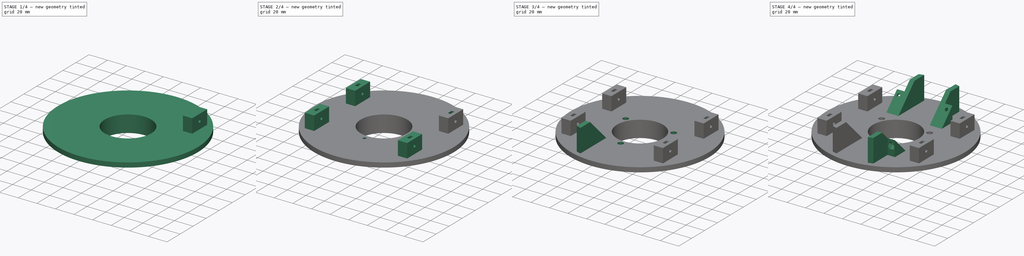
[diagram: build sequence overview — one tinted view per stage of 4, left to right]
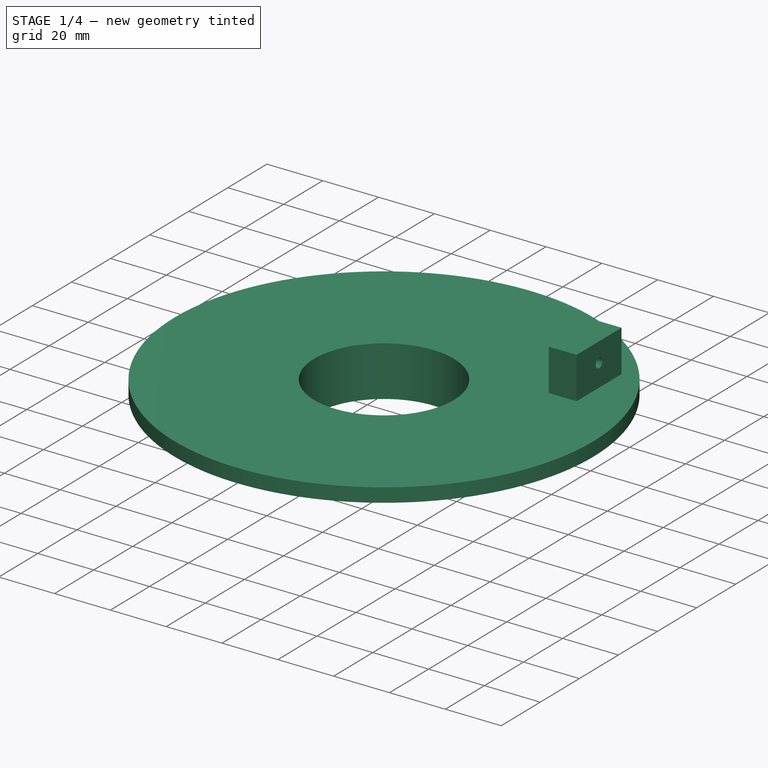
[diagram: stage 1 of 4 — iso view after this stage's code; geometry added in this stage tinted green]
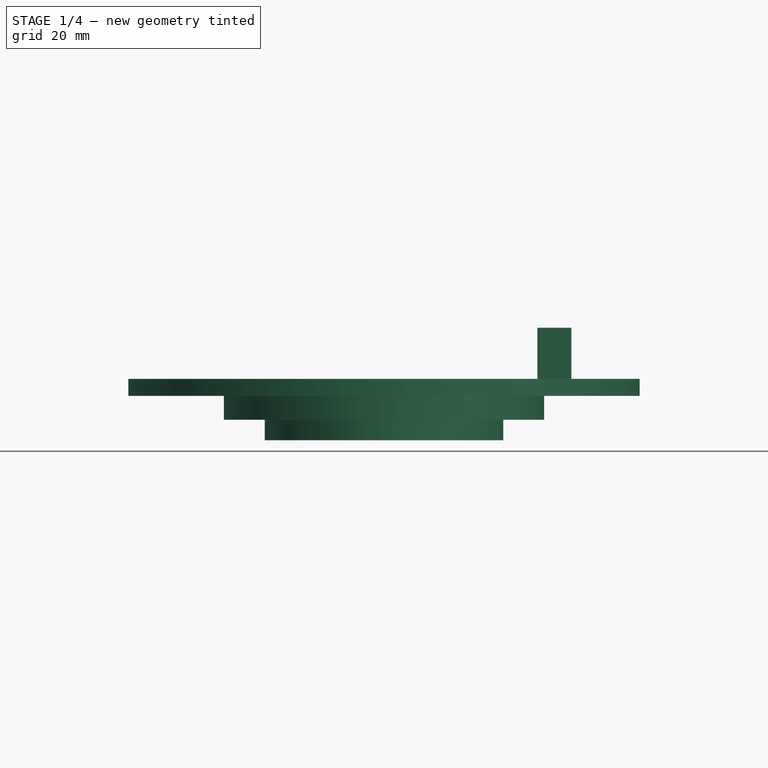
[diagram: stage 1 of 4 — front view after this stage's code; geometry added in this stage tinted green]
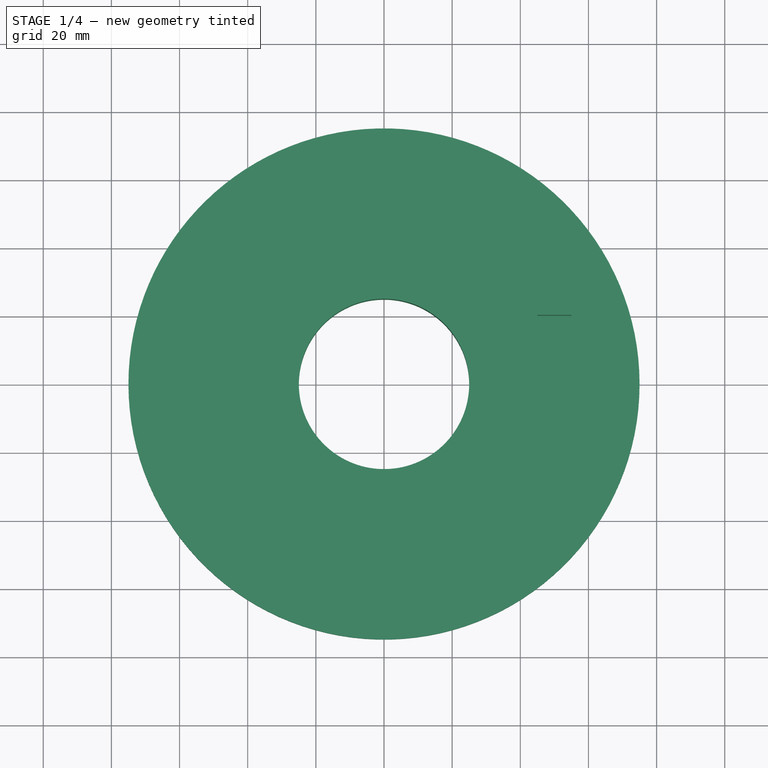
[diagram: stage 1 of 4 — top view after this stage's code; geometry added in this stage tinted green]
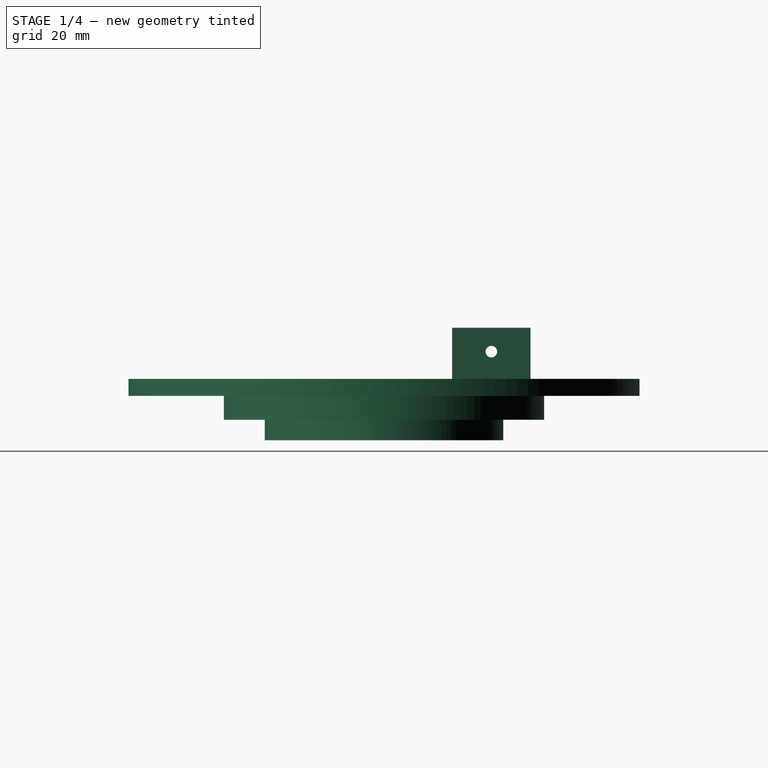
[diagram: stage 1 of 4 — right view after this stage's code; geometry added in this stage tinted green]
FCSTD DOCUMENT  (FreeCAD 0.19R24276 (Git))
Label: Art1Top
License: All rights reserved
LicenseURL: http://en.wikipedia.org/wiki/All_rights_reserved
objects: PartDesign::Line×11, Sketcher::SketchObject×10, PartDesign::Pocket×7, PartDesign::Mirrored×4, PartDesign::CoordinateSystem×4, PartDesign::Pad×2, PartDesign::Plane×2, PartDesign::MultiTransform×2, Spreadsheet::Sheet×1, PartDesign::Revolution×1, PartDesign::PolarPattern×1, PartDesign::Body×1
note: 55 computed .brp shape members not serialized (recipe doc carries the construction recipe); baked Part::Feature solids carry a one-line shape summary decoded from their .brp

FEATURE [Spreadsheet::Sheet] Spreadsheet
  cells = A2=M3BoltBodyRadius; B2(M3BoltBodyRadius)=1.7; A3=M3BoltHeadRadius; B3(M3BoltHeadRadius)=2.95; A4=M3NutCircumradius; B4(M3NutCircumradius)=3.35; A5=M3NutThickness; B5(M3NutThickness)=3; A6=Bearing655ZZBodyRadius; B6(Bearing655ZZBodyRadius)=8.199999999999999
FEATURE [Sketcher::SketchObject] Sketch
  FullyConstrained = true
  MapMode = 5
  Placement = pos=(0,0,0) rot=(1,0,0;1.5708rad)
  Support = -> [XZ_Plane]
  sketch-geometry (8):
    g0: LineSegment StartX=25 StartY=0 StartZ=0 EndX=25 EndY=18 EndZ=0
    g1: LineSegment StartX=25 StartY=18 StartZ=0 EndX=75 EndY=18 EndZ=0
    g2: LineSegment StartX=75 StartY=18 StartZ=0 EndX=75 EndY=13 EndZ=0
    g3: LineSegment StartX=75 StartY=13 StartZ=0 EndX=47 EndY=13 EndZ=0
    g4: LineSegment StartX=47 StartY=13 StartZ=0 EndX=47 EndY=6 EndZ=0
    g5: LineSegment StartX=47 StartY=6 StartZ=0 EndX=35 EndY=6 EndZ=0
    g6: LineSegment StartX=35 StartY=6 StartZ=0 EndX=35 EndY=0 EndZ=0
    g7: LineSegment StartX=35 StartY=0 StartZ=0 EndX=25 EndY=0 EndZ=0
  constraints (24):
    c: PointOnObject(g0,g-1)
    c: Vertical(g0)
    c: Coincident(g0,g1)
    c: Horizontal(g1)
    c: Coincident(g1,g2)
    c: Vertical(g2)
    c: Coincident(g2,g3)
    c: Horizontal(g3)
    c: Coincident(g3,g4)
    c: Vertical(g4)
    c: Coincident(g4,g5)
    c: Horizontal(g5)
    c: Coincident(g5,g6)
    c: Vertical(g6)
    c: Coincident(g6,g7)
    c: Coincident(g7,g0)
    c: Horizontal(g7)
    c: DistanceY(g6,g5) = 6
    c: DistanceY(g4,g4) = 7
    c: DistanceY(g2,g2) = 5
    c: DistanceX(g-1,g0) = 25
    c: DistanceX(g-1,g6) = 35
    c: DistanceX(g-1,g4) = 47
    c: DistanceX(g-1,g2) = 75
FEATURE [PartDesign::Revolution] Revolution
  Angle = 360
  Axis = (0,-2e-16,1)
  Base = (0,0,0)
  Placement = pos=(0,0,0) rot=(1,0,0;1.5708rad)
  Profile = -> Sketch
  ReferenceAxis = -> Sketch [V_Axis]
  Refine = true
  Reversed = true
FEATURE [Sketcher::SketchObject] Sketch001
  FullyConstrained = true
  MapMode = 5
  Placement = pos=(0,4e-15,18) rot=(0,0,1;3.14159rad)
  Support = -> [Revolution]
  sketch-geometry (4):
    g0: LineSegment StartX=-45 StartY=-43 StartZ=0 EndX=-55 EndY=-43 EndZ=0
    g1: LineSegment StartX=-55 StartY=-43 StartZ=0 EndX=-55 EndY=-20 EndZ=0
    g2: LineSegment StartX=-55 StartY=-20 StartZ=0 EndX=-45 EndY=-20 EndZ=0
    g3: LineSegment StartX=-45 StartY=-20 StartZ=0 EndX=-45 EndY=-43 EndZ=0
  constraints (12):
    c: Coincident(g0,g1)
    c: Coincident(g1,g2)
    c: Coincident(g2,g3)
    c: Coincident(g3,g0)
    c: Horizontal(g0)
    c: Horizontal(g2)
    c: Vertical(g1)
    c: Vertical(g3)
    c: DistanceY(g2,g-1) = 20
    c: DistanceX(g2,g-1) = 45
    c: DistanceX(g2,g2) = 10
    c: DistanceY(g3,g3) = 23
FEATURE [PartDesign::Pad] Pad
  BaseFeature = -> Revolution
  Direction = (1,1,1)
  Length = 15
  Length2 = 100
  Placement = pos=(0,0,0) rot=(1,0,0;1.5708rad)
  Profile = -> Sketch001
  Refine = true
  Type = 0
FEATURE [Sketcher::SketchObject] Sketch002
  FullyConstrained = false
  MapMode = 5
  Placement = pos=(55,0,0) rot=(0.707107,0,0.707107;3.14159rad)
  Support = -> [Pad]
  expr: Constraints[0] = Spreadsheet.M3BoltBodyRadius
  sketch-geometry (1):
    g0: Circle CenterX=26 CenterY=-31.5 CenterZ=0 NormalX=0 NormalY=0 NormalZ=1 AngleXU=0 Radius=1.7
  constraints (1):
    c: Radius(g0) = 1.7
FEATURE [PartDesign::Pocket] Pocket
  BaseFeature = -> Pad
  Length = 5
  Length2 = 100
  Placement = pos=(0,0,0) rot=(1,0,0;1.5708rad)
  Profile = -> Sketch002
  Refine = true
  Type = 1
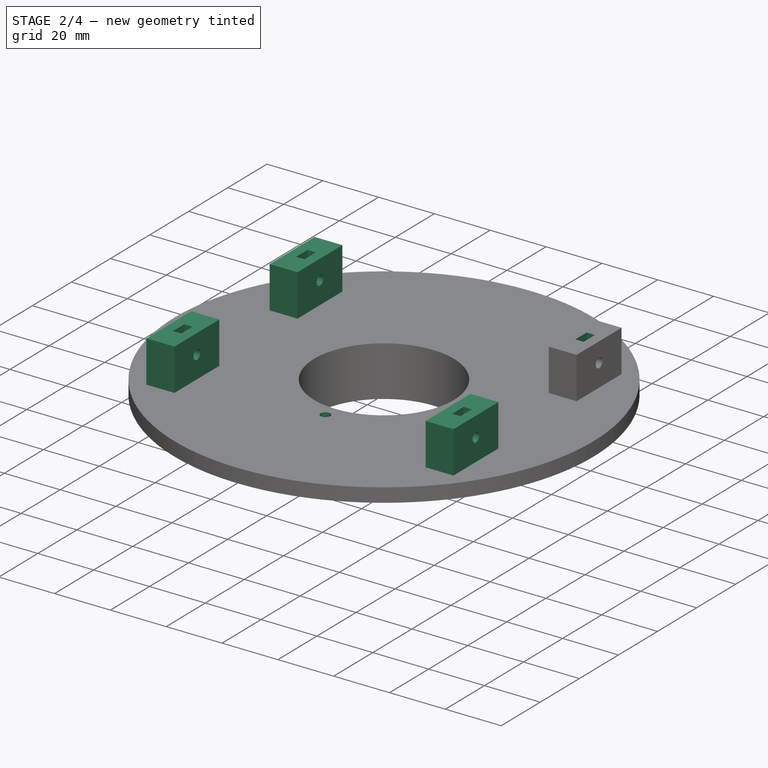
[diagram: stage 2 of 4 — iso view after this stage's code; geometry added in this stage tinted green]
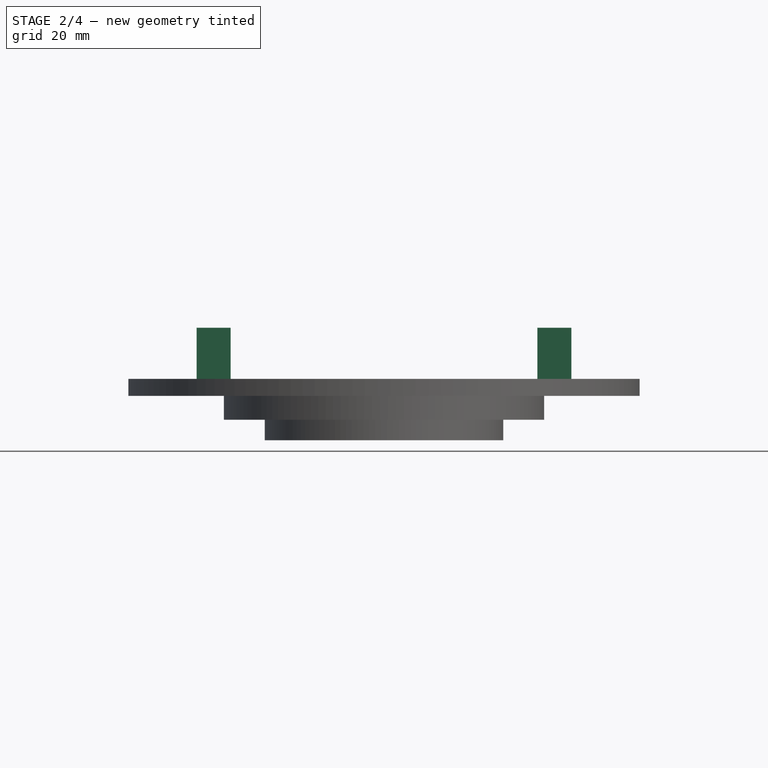
[diagram: stage 2 of 4 — front view after this stage's code; geometry added in this stage tinted green]
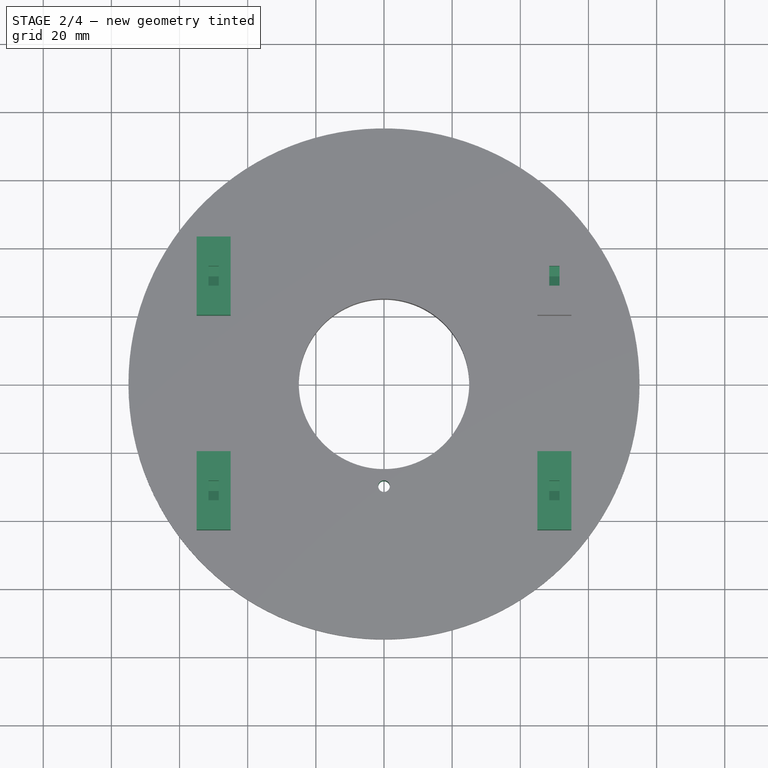
[diagram: stage 2 of 4 — top view after this stage's code; geometry added in this stage tinted green]
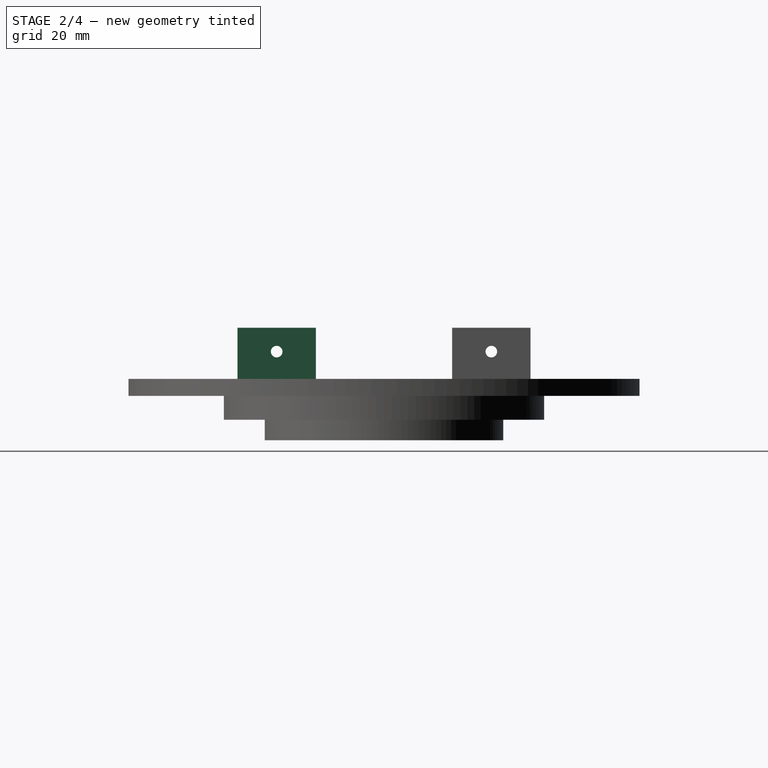
[diagram: stage 2 of 4 — right view after this stage's code; geometry added in this stage tinted green]
FEATURE [PartDesign::Plane] DatumPlane
  AttachmentOffset = pos=(0,0,-5) rot=(0,0,1;0rad)
  Length = 88.199
  MapMode = 5
  Placement = pos=(50,0,1.1e-15) rot=(0.707107,0,0.707107;3.14159rad)
  ResizeMode = 0
  Support = -> [Pocket]
  Width = 170.199
FEATURE [Sketcher::SketchObject] Sketch003
  FullyConstrained = false
  MapMode = 5
  Placement = pos=(50,0,1.1e-15) rot=(0.707107,0,0.707107;3.14159rad)
  Support = -> [DatumPlane]
  expr: Constraints[17] = Spreadsheet.M3NutCircumradius
  sketch-geometry (10):
    g0: LineSegment StartX=29.35 StartY=-31.5 StartZ=0 EndX=27.675 EndY=-28.5988 EndZ=0
    g1: LineSegment StartX=27.675 StartY=-28.5988 StartZ=0 EndX=24.325 EndY=-28.5988 EndZ=0
    g2: LineSegment StartX=24.325 StartY=-28.5988 StartZ=0 EndX=22.65 EndY=-31.5 EndZ=0
    g3: LineSegment StartX=22.65 StartY=-31.5 StartZ=0 EndX=24.325 EndY=-34.4012 EndZ=0
    g4: LineSegment StartX=24.325 StartY=-34.4012 StartZ=0 EndX=27.675 EndY=-34.4012 EndZ=0
    g5: LineSegment StartX=27.675 StartY=-34.4012 StartZ=0 EndX=29.35 EndY=-31.5 EndZ=0
    g6: Circle CenterX=26 CenterY=-31.5 CenterZ=0 NormalX=0 NormalY=0 NormalZ=1 AngleXU=0 Radius=3.35
    g7: LineSegment StartX=24.325 StartY=-28.5988 StartZ=0 EndX=34.325 EndY=-28.5988 EndZ=0
    g8: LineSegment StartX=34.325 StartY=-28.5988 StartZ=0 EndX=34.325 EndY=-34.4012 EndZ=0
    g9: LineSegment StartX=34.325 StartY=-34.4012 StartZ=0 EndX=24.325 EndY=-34.4012 EndZ=0
  constraints (23):
    c: Coincident(g0,g1)
    c: Coincident(g1,g2)
    c: Coincident(g2,g3)
    c: Coincident(g3,g4)
    c: Coincident(g4,g5)
    c: Coincident(g5,g0)
    c: Equal(g0, g1-g5) x5
    c: PointOnObject(g0,g6)
    c: PointOnObject(g1,g6)
    c: PointOnObject(g2,g6)
    c: PointOnObject(g3,g6)
    c: PointOnObject(g4,g6)
    c: PointOnObject(g5,g6)
    c: Radius(g6) = 3.35
    c: Horizontal(g4)
    c: Coincident(g2,g7)
    c: Horizontal(g7)
    c: Coincident(g7,g8)
    c: Vertical(g8)
    c: Coincident(g8,g9)
    c: Coincident(g9,g3)
    c: Horizontal(g9)
    c: DistanceX(g9,g9) = 10
FEATURE [PartDesign::Pocket] Pocket001
  BaseFeature = -> Pocket
  Length = 3
  Length2 = 100
  Midplane = true
  Placement = pos=(0,0,0) rot=(1,0,0;1.5708rad)
  Profile = -> Sketch003
  Refine = true
  Type = 0
  expr: Length = Spreadsheet.M3NutThickness
FEATURE [PartDesign::Mirrored] Mirrored
  MirrorPlane = -> XZ_Plane
  Placement = pos=(0,0,0) rot=(1,0,0;1.5708rad)
  Refine = true
FEATURE [PartDesign::Mirrored] Mirrored001
  MirrorPlane = -> YZ_Plane
  Placement = pos=(0,0,0) rot=(1,0,0;1.5708rad)
  Refine = true
FEATURE [PartDesign::MultiTransform] MultiTransform
  BaseFeature = -> Pocket001
  Originals = -> [Pad,Pocket,Pocket001]
  Placement = pos=(0,0,0) rot=(1,0,0;1.5708rad)
  Refine = true
  Transformations = -> [Mirrored,Mirrored001]
FEATURE [Sketcher::SketchObject] Sketch004
  FullyConstrained = true
  MapMode = 5
  Placement = pos=(0,4e-15,18) rot=(0,0,1;3.14159rad)
  Support = -> [MultiTransform]
  expr: Constraints[1] = Spreadsheet.M3BoltBodyRadius
  sketch-geometry (1):
    g0: Circle CenterX=0 CenterY=30 CenterZ=0 NormalX=0 NormalY=0 NormalZ=1 AngleXU=0 Radius=1.7
  constraints (3):
    c: PointOnObject(g0,g-2)
    c: Radius(g0) = 1.7
    c: DistanceY(g-1,g0) = 30
FEATURE [PartDesign::Pocket] Pocket002
  BaseFeature = -> MultiTransform
  Length = 5
  Length2 = 100
  Placement = pos=(0,0,0) rot=(1,0,0;1.5708rad)
  Profile = -> Sketch004
  Refine = true
  Type = 1
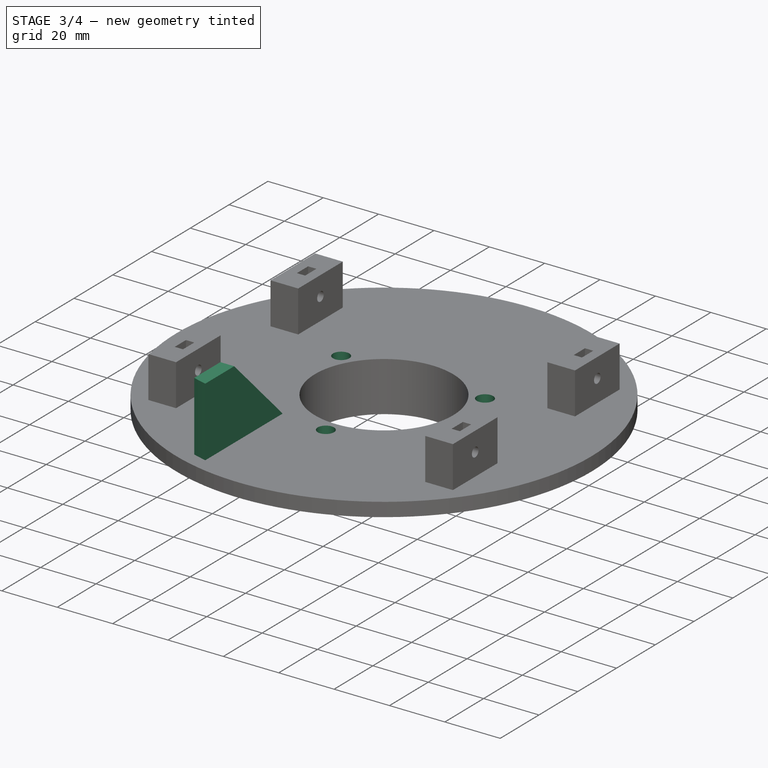
[diagram: stage 3 of 4 — iso view after this stage's code; geometry added in this stage tinted green]
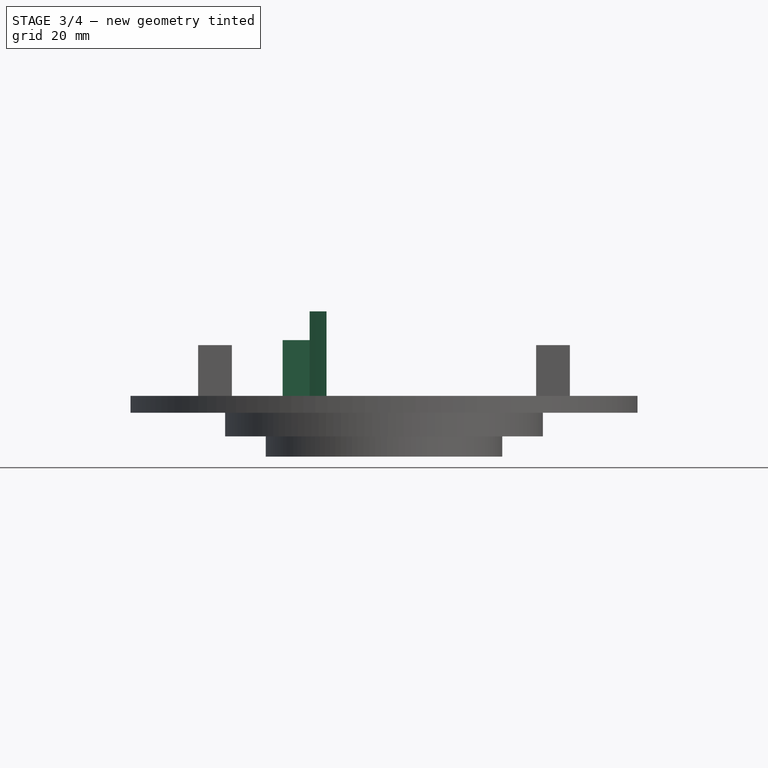
[diagram: stage 3 of 4 — front view after this stage's code; geometry added in this stage tinted green]
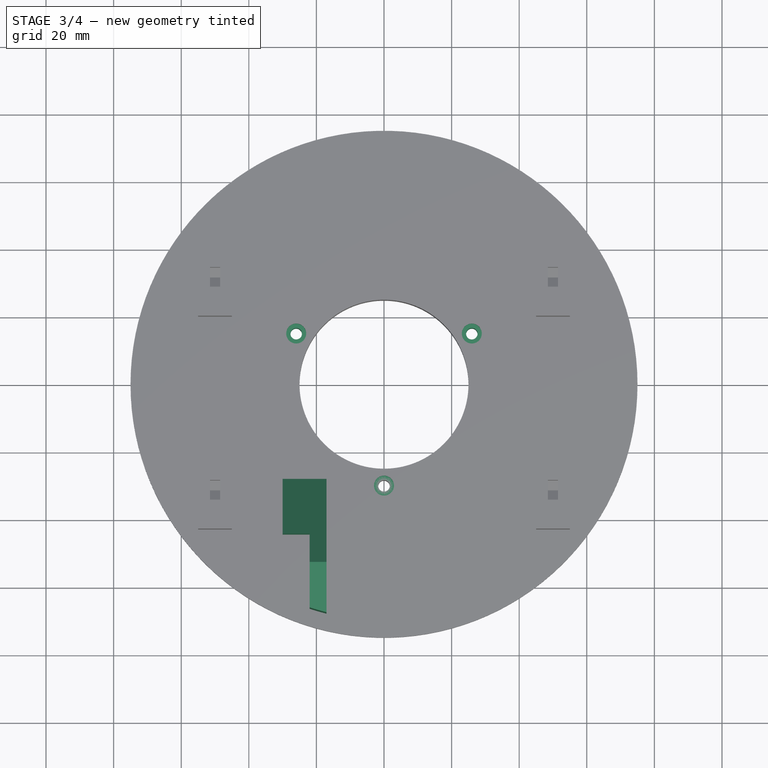
[diagram: stage 3 of 4 — top view after this stage's code; geometry added in this stage tinted green]
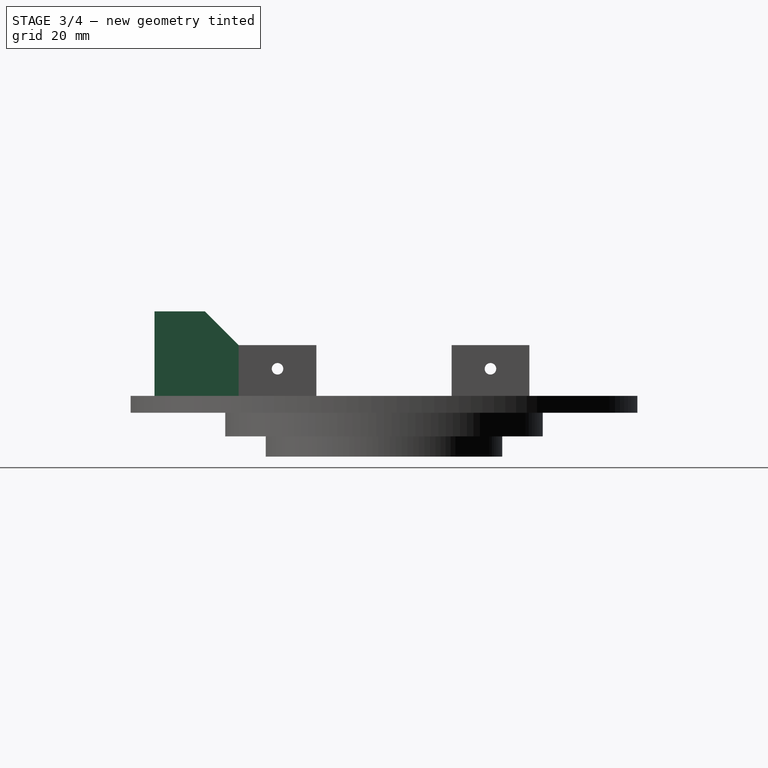
[diagram: stage 3 of 4 — right view after this stage's code; geometry added in this stage tinted green]
FEATURE [Sketcher::SketchObject] Sketch005
  ExternalGeometry = -> [Pocket002]
  FullyConstrained = true
  MapMode = 5
  Placement = pos=(0,4e-15,18) rot=(0,0,1;3.14159rad)
  Support = -> [Pocket002]
  expr: Constraints[1] = Spreadsheet.M3BoltHeadRadius
  sketch-geometry (1):
    g0: Circle CenterX=0 CenterY=30 CenterZ=0 NormalX=0 NormalY=0 NormalZ=1 AngleXU=0 Radius=2.95
  constraints (2):
    c: Coincident(g0,g-3)
    c: Radius(g0) = 2.95
FEATURE [PartDesign::Pocket] Pocket003
  BaseFeature = -> Pocket002
  Length = 3
  Length2 = 100
  Placement = pos=(0,0,0) rot=(1,0,0;1.5708rad)
  Profile = -> Sketch005
  Refine = true
  Type = 0
FEATURE [PartDesign::PolarPattern] PolarPattern
  Angle = 360
  Axis = -> Sketch005 [N_Axis]
  BaseFeature = -> Pocket003
  Occurrences = 3
  Originals = -> [Pocket003,Pocket002]
  Placement = pos=(0,0,0) rot=(1,0,0;1.5708rad)
  Refine = true
FEATURE [Sketcher::SketchObject] Sketch006
  FullyConstrained = true
  MapMode = 5
  Placement = pos=(0,4e-15,18) rot=(0,0,1;3.14159rad)
  Support = -> [PolarPattern]
  sketch-geometry (6):
    g0: LineSegment StartX=22 StartY=66.453 StartZ=0 EndX=22 EndY=44.5 EndZ=0
    g1: LineSegment StartX=30 StartY=28 StartZ=0 EndX=17 EndY=28 EndZ=0
    g2: LineSegment StartX=17 StartY=28 StartZ=0 EndX=17 EndY=67.9043 EndZ=0
    g3: ArcOfCircle CenterX=0 CenterY=0 CenterZ=0 NormalX=0 NormalY=0 NormalZ=1 AngleXU=0 Radius=70 StartAngle=1.25109 EndAngle=1.32549
    g4: LineSegment StartX=22 StartY=44.5 StartZ=0 EndX=30 EndY=44.5 EndZ=0
    g5: LineSegment StartX=30 StartY=44.5 StartZ=0 EndX=30 EndY=28 EndZ=0
  constraints (18):
    c: Vertical(g0)
    c: Horizontal(g1)
    c: Coincident(g1,g2)
    c: Vertical(g2)
    c: DistanceX(g-1,g1) = 17
    c: DistanceY(g-1,g1) = 28
    c: Coincident(g3,g-1)
    c: Coincident(g3,g0)
    c: Coincident(g2,g3)
    c: Radius(g3) = 70
    c: Horizontal(g4)
    c: Coincident(g4,g5)
    c: Vertical(g5)
    c: Coincident(g0,g4)
    c: Coincident(g1,g5)
    c: DistanceX(g1,g1) = 13
    c: DistanceY(g5,g5) = 16.5
    c: DistanceX(g2,g0) = 5
FEATURE [PartDesign::Pad] Pad001
  BaseFeature = -> PolarPattern
  Direction = (1,1,1)
  Length = 25
  Length2 = 100
  Placement = pos=(0,0,0) rot=(1,0,0;1.5708rad)
  Profile = -> Sketch006
  Refine = true
  Type = 0
FEATURE [Sketcher::SketchObject] Sketch007
  ExternalGeometry = -> [Pad001]
  FullyConstrained = true
  MapMode = 5
  Placement = pos=(-17,0,0) rot=(0.707107,0,0.707107;3.14159rad)
  Support = -> [Pad001]
  sketch-geometry (3):
    g0: LineSegment StartX=18 StartY=28 StartZ=0 EndX=63 EndY=73 EndZ=0
    g1: LineSegment StartX=63 StartY=73 StartZ=0 EndX=63 EndY=28 EndZ=0
    g2: LineSegment StartX=63 StartY=28 StartZ=0 EndX=18 EndY=28 EndZ=0
  constraints (8):
    c: Coincident(g-3,g0)
    c: Coincident(g0,g1)
    c: Vertical(g1)
    c: Coincident(g1,g2)
    c: Horizontal(g2)
    c: Coincident(g0,g2)
    c: Angle(g0,g-3) = 0.785398
    c: DistanceX(g2,g2) = 45
FEATURE [PartDesign::Pocket] Pocket004
  BaseFeature = -> Pad001
  Length = 0
  Length2 = 100
  Placement = pos=(0,0,0) rot=(1,0,0;1.5708rad)
  Profile = -> Sketch007
  Refine = true
  Type = 3
  UpToFace = -> Pad001 [Face31]
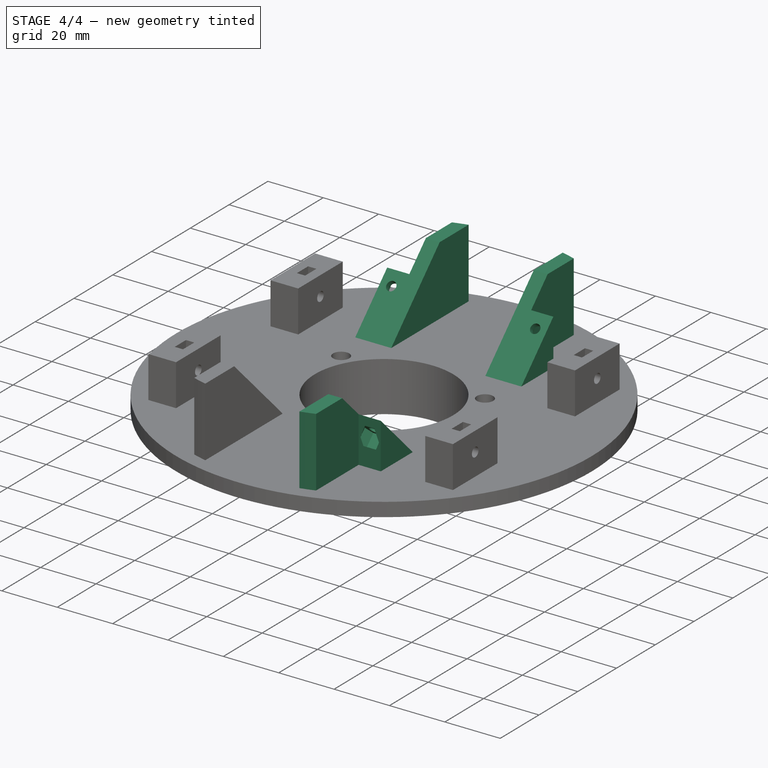
[diagram: stage 4 of 4 — iso view after this stage's code; geometry added in this stage tinted green]
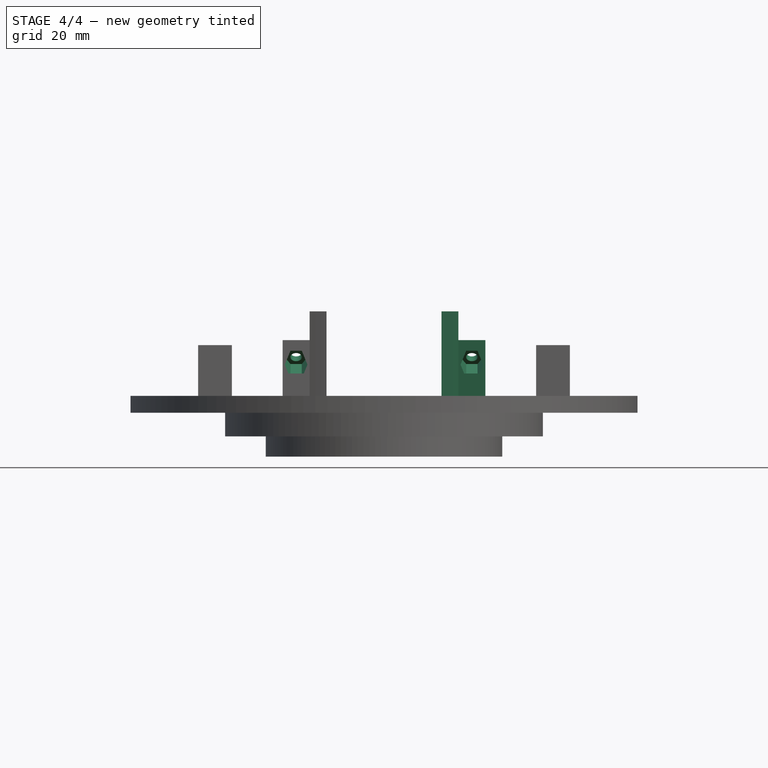
[diagram: stage 4 of 4 — front view after this stage's code; geometry added in this stage tinted green]
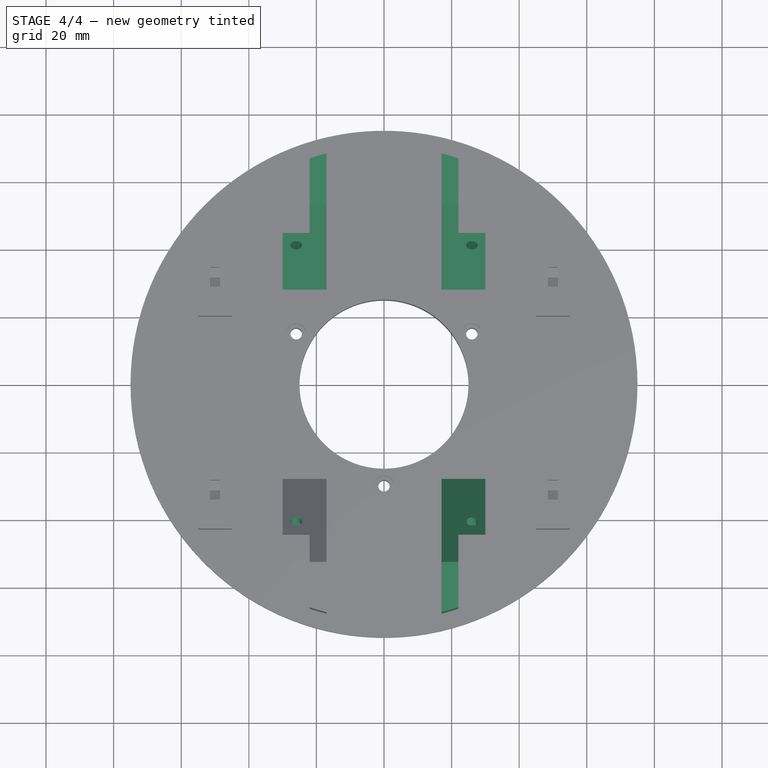
[diagram: stage 4 of 4 — top view after this stage's code; geometry added in this stage tinted green]
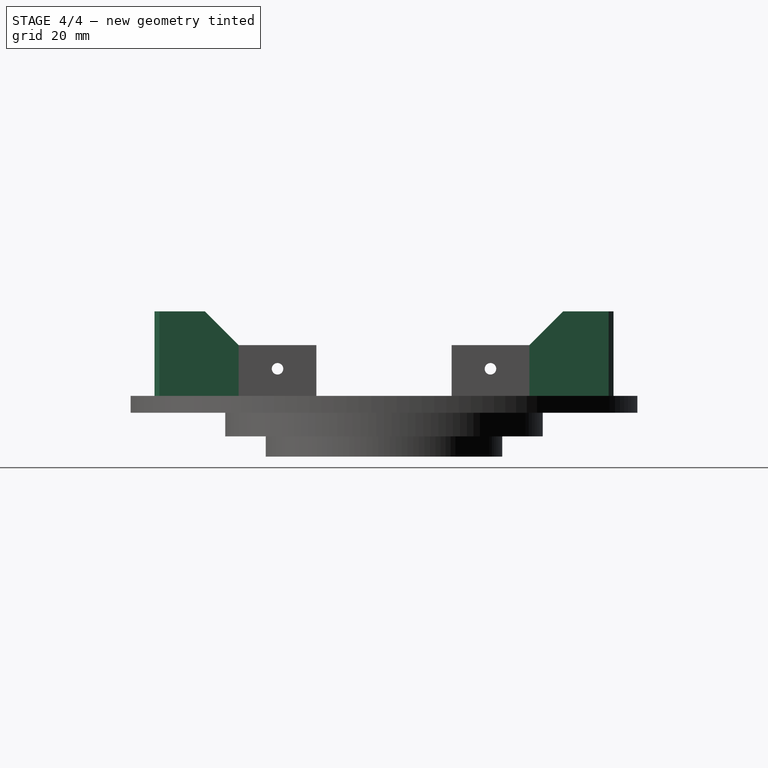
[diagram: stage 4 of 4 — right view after this stage's code; geometry added in this stage tinted green]
FEATURE [Sketcher::SketchObject] Sketch008
  ExternalGeometry = -> [Pocket004]
  FullyConstrained = true
  MapMode = 5
  Placement = pos=(-1.1e-15,-5,-5) rot=(-1,0,0;0.785398rad)
  Support = -> [Pocket004]
  expr: Constraints[0] = Spreadsheet.M3BoltBodyRadius
  sketch-geometry (1):
    g0: Circle CenterX=-26 CenterY=-50.7269 CenterZ=0 NormalX=0 NormalY=0 NormalZ=1 AngleXU=0 Radius=1.7
  constraints (3):
    c: Radius(g0) = 1.7
    c: DistanceY(g0,g-3) = 18.2
    c: DistanceX(g-3,g0) = 4
FEATURE [PartDesign::Pocket] Pocket005
  BaseFeature = -> Pocket004
  Length = 10
  Length2 = 100
  Placement = pos=(0,0,0) rot=(1,0,0;1.5708rad)
  Profile = -> Sketch008
  Refine = true
  Type = 0
FEATURE [PartDesign::Plane] DatumPlane001
  AttachmentOffset = pos=(0,0,-2) rot=(0,0,1;0rad)
  Length = 180.412
  MapMode = 5
  Placement = pos=(-1.5e-15,-6.41421,-6.41421) rot=(-1,0,0;0.785398rad)
  ResizeMode = 0
  Support = -> [Pocket005]
  Width = 184.561
FEATURE [Sketcher::SketchObject] Sketch009
  ExternalGeometry = -> [Pocket005]
  FullyConstrained = true
  MapMode = 5
  Placement = pos=(-1.5e-15,-6.41421,-6.41421) rot=(-1,0,0;0.785398rad)
  Support = -> [DatumPlane001]
  expr: Constraints[19] = Spreadsheet.M3NutCircumradius
  sketch-geometry (7):
    g0: LineSegment StartX=-24.325 StartY=-53.6281 StartZ=0 EndX=-22.65 EndY=-50.7269 EndZ=0
    g1: LineSegment StartX=-22.65 StartY=-50.7269 StartZ=0 EndX=-24.325 EndY=-47.8257 EndZ=0
    g2: LineSegment StartX=-24.325 StartY=-47.8257 StartZ=0 EndX=-27.675 EndY=-47.8257 EndZ=0
    g3: LineSegment StartX=-27.675 StartY=-47.8257 StartZ=0 EndX=-29.35 EndY=-50.7269 EndZ=0
    g4: LineSegment StartX=-29.35 StartY=-50.7269 StartZ=0 EndX=-27.675 EndY=-53.6281 EndZ=0
    g5: LineSegment StartX=-27.675 StartY=-53.6281 StartZ=0 EndX=-24.325 EndY=-53.6281 EndZ=0
    g6: Circle CenterX=-26 CenterY=-50.7269 CenterZ=0 NormalX=0 NormalY=0 NormalZ=1 AngleXU=0 Radius=3.35
  constraints (16):
    c: Coincident(g0,g1)
    c: Coincident(g1,g2)
    c: Coincident(g2,g3)
    c: Coincident(g3,g4)
    c: Coincident(g4,g5)
    c: Coincident(g5,g0)
    c: Equal(g0, g1-g5) x5
    c: PointOnObject(g0,g6)
    c: PointOnObject(g1,g6)
    c: PointOnObject(g2,g6)
    c: PointOnObject(g3,g6)
    c: PointOnObject(g4,g6)
    c: PointOnObject(g5,g6)
    c: Coincident(g6,g-3)
    c: Horizontal(g5)
    c: Radius(g6) = 3.35
FEATURE [PartDesign::Pocket] Pocket006
  BaseFeature = -> Pocket005
  Length = 5
  Length2 = 100
  Placement = pos=(0,0,0) rot=(1,0,0;1.5708rad)
  Profile = -> Sketch009
  Refine = true
  Type = 0
FEATURE [PartDesign::Mirrored] Mirrored002
  MirrorPlane = -> Sketch006 [V_Axis]
  Placement = pos=(0,0,0) rot=(1,0,0;1.5708rad)
  Refine = true
FEATURE [PartDesign::Mirrored] Mirrored003
  MirrorPlane = -> Sketch006 [H_Axis]
  Placement = pos=(0,0,0) rot=(1,0,0;1.5708rad)
  Refine = true
FEATURE [PartDesign::MultiTransform] MultiTransform001
  BaseFeature = -> Pocket006
  Originals = -> [Pad001,Pocket004,Pocket005,Pocket006]
  Placement = pos=(0,0,0) rot=(1,0,0;1.5708rad)
  Refine = true
  Transformations = -> [Mirrored002,Mirrored003]
FEATURE [PartDesign::CoordinateSystem] LCS_Bot
  AttacherType = Attacher::AttachEngine3D
  MapMode = 45
  Placement = pos=(2.6e-15,3.5e-15,-1.2e-15) rot=(0,0,1;0rad)
  Support = -> [MultiTransform001]
FEATURE [PartDesign::CoordinateSystem] LCS_Top
  AttacherType = Attacher::AttachEngine3D
  MapMode = 45
  Placement = pos=(-1.06e-14,6.7e-15,26) rot=(0,0,1;1.5708rad)
  Support = -> [MultiTransform001]
FEATURE [PartDesign::CoordinateSystem] LCS_Fan1
  AttacherType = Attacher::AttachEngine3D
  MapMode = 45
  Placement = pos=(-2.7e-15,40.8693,30.8693) rot=(0.678598,0.678598,0.281085;3.68962rad)
  Support = -> [MultiTransform001]
FEATURE [PartDesign::CoordinateSystem] LCS_Fan2
  AttacherType = Attacher::AttachEngine3D
  MapMode = 45
  Placement = pos=(2.7e-15,-40.8693,30.8693) rot=(-0.357407,-0.357407,-0.862856;1.71777rad)
  Support = -> [MultiTransform001]
FEATURE [PartDesign::Line] HoleAxis_1
  AttacherType = Attacher::AttachEngineLine
  Length = 4.79083
  MapMode = 19
  Placement = pos=(51.5,31.5,26) rot=(0.707107,0,0.707107;3.14159rad)
  ResizeMode = 1
  Support = -> [MultiTransform001]
FEATURE [PartDesign::Line] HoleAxis_2
  AttacherType = Attacher::AttachEngineLine
  Length = 4.79083
  MapMode = 19
  Placement = pos=(51.5,-31.5,26) rot=(0.707107,0,0.707107;3.14159rad)
  ResizeMode = 1
  Support = -> [MultiTransform001]
FEATURE [PartDesign::Line] HoleAxis_3
  AttacherType = Attacher::AttachEngineLine
  Length = 4.79083
  MapMode = 19
  Placement = pos=(-48.5,-31.5,26) rot=(0.707107,0,0.707107;3.14159rad)
  ResizeMode = 1
  Support = -> [MultiTransform001]
FEATURE [PartDesign::Line] HoleAxis_4
  AttacherType = Attacher::AttachEngineLine
  Length = 4.79083
  MapMode = 19
  Placement = pos=(-48.5,31.5,26) rot=(0,-1,0;1.5708rad)
  ResizeMode = 1
  Support = -> [MultiTransform001]
FEATURE [PartDesign::Line] HoleAxis_5
  AttacherType = Attacher::AttachEngineLine
  Length = 4.79083
  MapMode = 19
  Placement = pos=(-26,42.2836,29.4551) rot=(1,0,0;0.785398rad)
  ResizeMode = 1
  Support = -> [MultiTransform001]
FEATURE [PartDesign::Line] HoleAxis_6
  AttacherType = Attacher::AttachEngineLine
  Length = 4.79083
  MapMode = 19
  Placement = pos=(26,42.2836,29.4551) rot=(0,-0.382683,0.92388;3.14159rad)
  ResizeMode = 1
  Support = -> [MultiTransform001]
FEATURE [PartDesign::Line] HoleAxis_7
  AttacherType = Attacher::AttachEngineLine
  Length = 4.79083
  MapMode = 19
  Placement = pos=(0,-30,15) rot=(0,0,1;3.14159rad)
  ResizeMode = 1
  Support = -> [MultiTransform001]
FEATURE [PartDesign::Line] HoleAxis_8
  AttacherType = Attacher::AttachEngineLine
  Length = 4.79858
  MapMode = 19
  Placement = pos=(25.9808,15,15) rot=(0,0,-1;1.0472rad)
  ResizeMode = 1
  Support = -> [MultiTransform001]
FEATURE [PartDesign::Line] HoleAxis_9
  AttacherType = Attacher::AttachEngineLine
  Length = 4.79858
  MapMode = 19
  Placement = pos=(-25.9808,15,15) rot=(0,0,1;1.0472rad)
  ResizeMode = 1
  Support = -> [MultiTransform001]
FEATURE [PartDesign::Line] HoleAxis_10
  AttacherType = Attacher::AttachEngineLine
  Length = 4.79083
  MapMode = 19
  Placement = pos=(26,-42.2836,29.4551) rot=(0,0.382683,0.92388;3.14159rad)
  ResizeMode = 1
  Support = -> [MultiTransform001]
FEATURE [PartDesign::Line] HoleAxis_11
  AttacherType = Attacher::AttachEngineLine
  Length = 4.79083
  MapMode = 19
  Placement = pos=(-26,-42.2836,29.4551) rot=(-1,0,0;0.785398rad)
  ResizeMode = 1
  Support = -> [MultiTransform001]
FEATURE [PartDesign::Body] Body  label="Art1Top"
  Group = -> [Sketch,Revolution,Sketch001,Sketch002,DatumPlane,Sketch003,Pad,Pocket,Pocket001,MultiTransform,Mirrored,Mirrored001,Sketch004,Pocket002,Sketch005,Pocket003,PolarPattern,Sketch006,Pad001,Sketch007,Pocket004,Sketch008,Pocket005,DatumPlane001,Sketch009,Pocket006,MultiTransform001,Mirrored002,Mirrored003,LCS_Bot,LCS_Top,LCS_Fan1,LCS_Fan2,HoleAxis_1,HoleAxis_2,HoleAxis_3,HoleAxis_4,HoleAxis_5,+6 more]
  Origin = -> Origin
  Tip = -> MultiTransform001
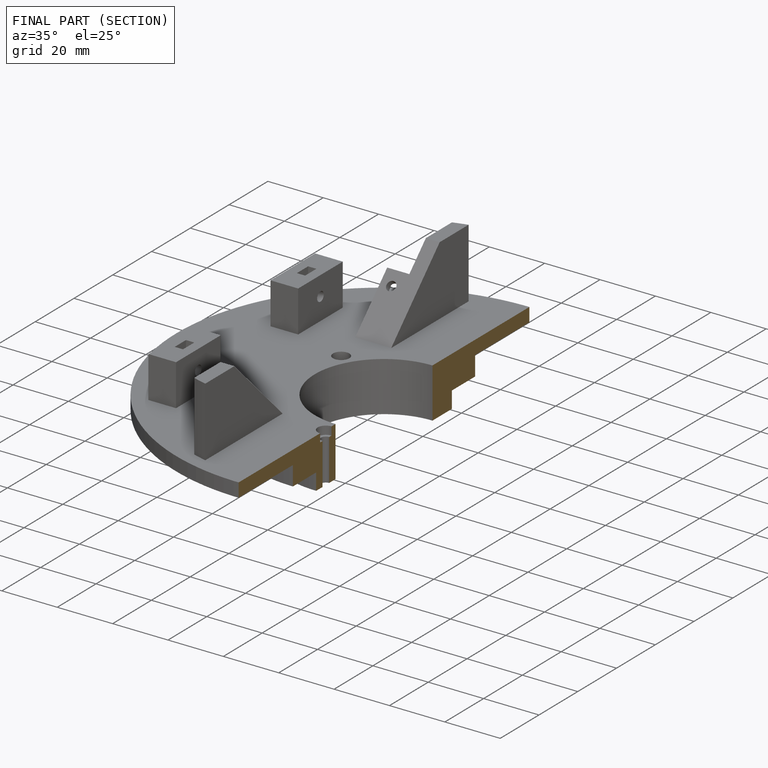
[diagram: finished part — half-section view (interior)]
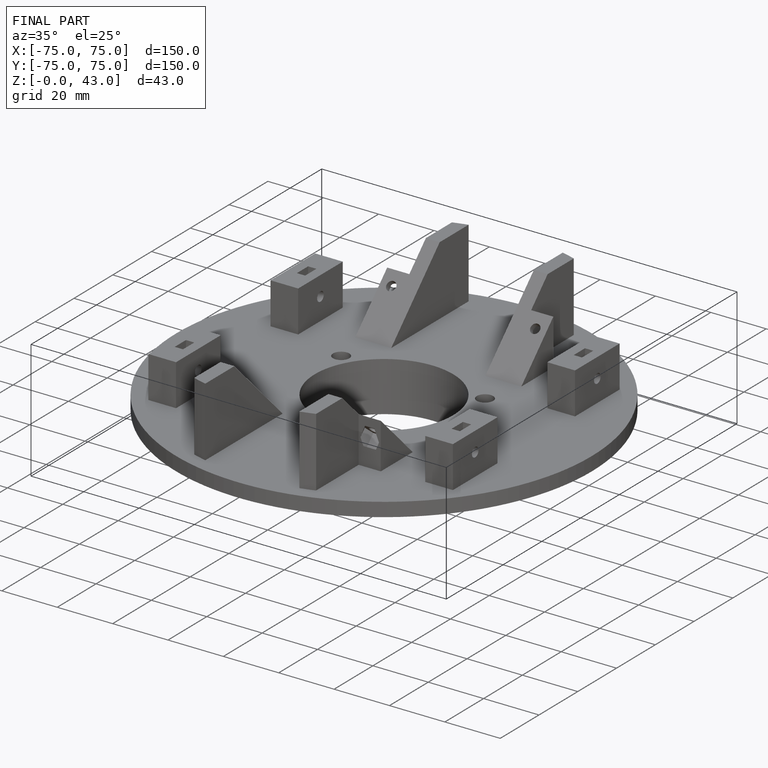
[diagram: finished part — iso view with bounding-box wireframe]
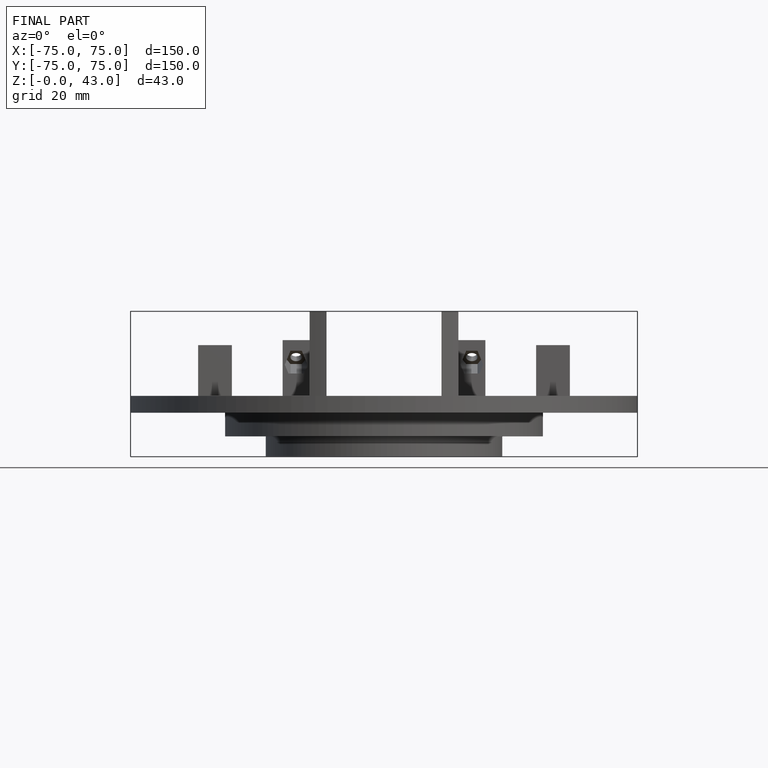
[diagram: finished part — front view with bounding-box wireframe]
